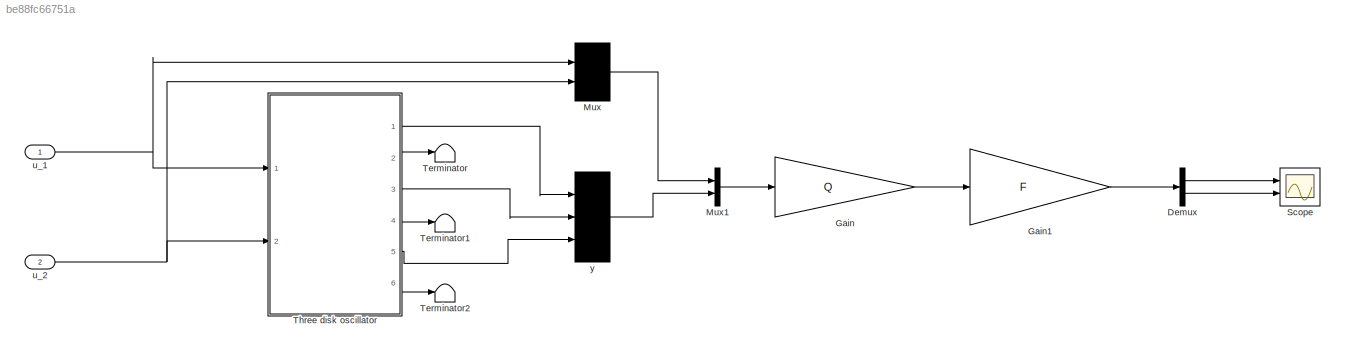
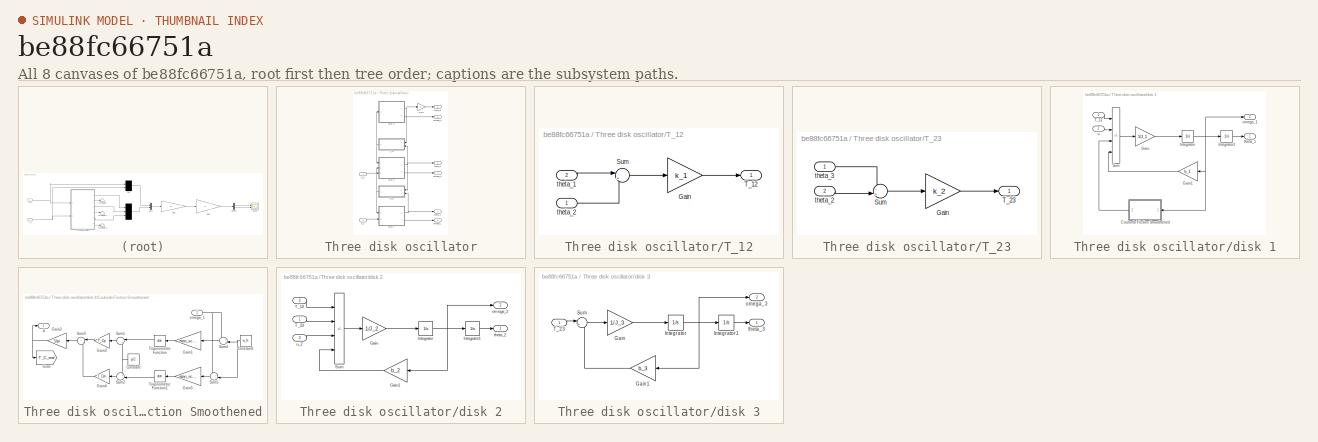
[diagram: thumbnail index - all 8 canvases of the model, root first then tree order]
MODEL slx_be88fc66751a
KIND model
CONFIG AbsTol = auto
CONFIG EnableMultiTasking = off
CONFIG FixedStep = auto
CONFIG MaxStep = auto
CONFIG MinStep = auto
CONFIG RelTol = 1e-3
CONFIG SampleTimeConstraint = Unconstrained
CONFIG SolverName = VariableStepAuto
CONFIG StartTime = 0.0
CONFIG StopTime = 10.0
BLOCK [Demux] Demux
  Outputs = 2
  Ports = [1, 2]
BLOCK [Gain] Gain
  Gain = Q
  Multiplication = Matrix(K*u) (u vector)
BLOCK [Gain] Gain1
  Gain = F
  Multiplication = Matrix(K*u) (u vector)
BLOCK [Mux] Mux
  DisplayOption = bar
  Inputs = 2
  Ports = [2, 1]
BLOCK [Mux] Mux1
  DisplayOption = bar
  Inputs = 2
  Ports = [2, 1]
BLOCK [Scope] Scope
  Floating = off
  NumInputPorts = 2
  Ports = [2]
  ScopeSpecificationString = Simulink.scopes.TimeScopeBlockCfg('CurrentConfiguration', extmgr.ConfigurationSet(extmgr.Configuration('Core','General UI',true),extmgr.Configuration('Core','Source UI',true),extmgr.Configuration('Sources','WiredSimulink',true),extmgr.Configuration('Visuals','Time Domain',true),extmgr.Configuration('Tools','Plot Navigation',true),extmgr.Configuration('Tools','Measurements',true,'Version','2021a'))...<+19ch>
BLOCK [Terminator] Terminator
BLOCK [Terminator] Terminator1
BLOCK [Terminator] Terminator2
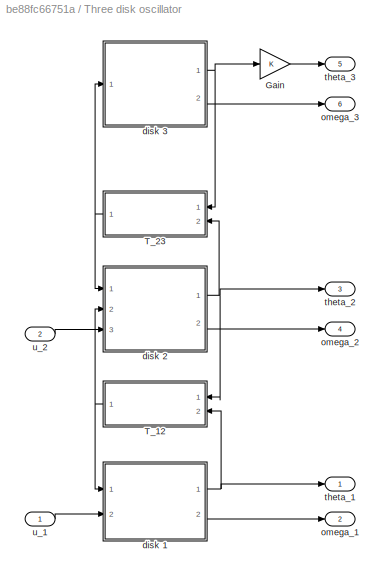
BLOCK [SubSystem] Three disk oscillator
  Ports = [2, 6]
  RequestExecContextInheritance = off
BLOCK [Gain] Three disk oscillator/Gain
BLOCK [SubSystem] Three disk oscillator/T_12
  Ports = [2, 1]
  RequestExecContextInheritance = off
BLOCK [Gain] Three disk oscillator/T_12/Gain
  Gain = k_1
BLOCK [Sum] Three disk oscillator/T_12/Sum
  Inputs = |+-
  Ports = [2, 1]
BLOCK [Outport] Three disk oscillator/T_12/T_12
  VectorParamsAs1DForOutWhenUnconnected = off
BLOCK [Inport] Three disk oscillator/T_12/theta_1
  Port = 2
BLOCK [Inport] Three disk oscillator/T_12/theta_2
BLOCK [SubSystem] Three disk oscillator/T_23
  Ports = [2, 1]
  RequestExecContextInheritance = off
BLOCK [Gain] Three disk oscillator/T_23/Gain
  Gain = k_2
BLOCK [Sum] Three disk oscillator/T_23/Sum
  Inputs = -+|
  Ports = [2, 1]
BLOCK [Outport] Three disk oscillator/T_23/T_23
  VectorParamsAs1DForOutWhenUnconnected = off
BLOCK [Inport] Three disk oscillator/T_23/theta_2
  Port = 2
BLOCK [Inport] Three disk oscillator/T_23/theta_3
BLOCK [SubSystem] Three disk oscillator/disk 1
  Ports = [2, 2]
  RequestExecContextInheritance = off
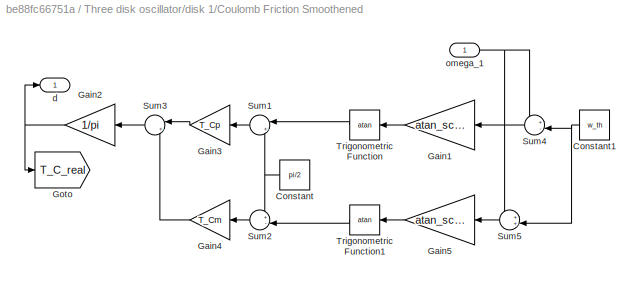
BLOCK [SubSystem] Three disk oscillator/disk 1/Coulomb Friction Smoothened
  Ports = [1, 1]
  RequestExecContextInheritance = off
BLOCK [Constant] Three disk oscillator/disk 1/Coulomb Friction Smoothened/Constant
  Value = pi/2
BLOCK [Constant] Three disk oscillator/disk 1/Coulomb Friction Smoothened/Constant1
  Value = w_th
BLOCK [Gain] Three disk oscillator/disk 1/Coulomb Friction Smoothened/Gain1
  Gain = atan_scale
BLOCK [Gain] Three disk oscillator/disk 1/Coulomb Friction Smoothened/Gain2
  Gain = 1/pi
BLOCK [Gain] Three disk oscillator/disk 1/Coulomb Friction Smoothened/Gain3
  Gain = T_Cp
BLOCK [Gain] Three disk oscillator/disk 1/Coulomb Friction Smoothened/Gain4
  Gain = T_Cm
BLOCK [Gain] Three disk oscillator/disk 1/Coulomb Friction Smoothened/Gain5
  Gain = atan_scale
BLOCK [Goto] Three disk oscillator/disk 1/Coulomb Friction Smoothened/Goto
  GotoTag = T_C_real
  TagVisibility = global
BLOCK [Sum] Three disk oscillator/disk 1/Coulomb Friction Smoothened/Sum1
  Inputs = |++
  Ports = [2, 1]
BLOCK [Sum] Three disk oscillator/disk 1/Coulomb Friction Smoothened/Sum2
  Inputs = +-|
  Ports = [2, 1]
BLOCK [Sum] Three disk oscillator/disk 1/Coulomb Friction Smoothened/Sum3
  Inputs = |+-
  Ports = [2, 1]
BLOCK [Sum] Three disk oscillator/disk 1/Coulomb Friction Smoothened/Sum4
  Inputs = +-|
  Ports = [2, 1]
BLOCK [Sum] Three disk oscillator/disk 1/Coulomb Friction Smoothened/Sum5
  Inputs = ++|
  Ports = [2, 1]
BLOCK [Trigonometry] Three disk oscillator/disk 1/Coulomb Friction Smoothened/Trigonometric Function
  Operator = atan
  Ports = [1, 1]
BLOCK [Trigonometry] Three disk oscillator/disk 1/Coulomb Friction Smoothened/Trigonometric Function1
  Operator = atan
  Ports = [1, 1]
BLOCK [Outport] Three disk oscillator/disk 1/Coulomb Friction Smoothened/d
  VectorParamsAs1DForOutWhenUnconnected = off
BLOCK [Inport] Three disk oscillator/disk 1/Coulomb Friction Smoothened/omega_1
BLOCK [Gain] Three disk oscillator/disk 1/Gain
  Gain = 1/J_1
BLOCK [Gain] Three disk oscillator/disk 1/Gain1
  Gain = b_1
BLOCK [Integrator] Three disk oscillator/disk 1/Integrator
  InitialCondition = x_0(2)
  Ports = [1, 1]
BLOCK [Integrator] Three disk oscillator/disk 1/Integrator1
  InitialCondition = x_0(1)
  Ports = [1, 1]
BLOCK [Sum] Three disk oscillator/disk 1/Sum
  IconShape = rectangular
  Inputs = -+--
  Ports = [4, 1]
BLOCK [Inport] Three disk oscillator/disk 1/T_12
BLOCK [Outport] Three disk oscillator/disk 1/omega_1
  Port = 2
  VectorParamsAs1DForOutWhenUnconnected = off
BLOCK [Outport] Three disk oscillator/disk 1/theta_1
  VectorParamsAs1DForOutWhenUnconnected = off
BLOCK [Inport] Three disk oscillator/disk 1/u
  Port = 2
BLOCK [SubSystem] Three disk oscillator/disk 2
  Ports = [3, 2]
  RequestExecContextInheritance = off
BLOCK [Gain] Three disk oscillator/disk 2/Gain
  Gain = 1/J_2
BLOCK [Gain] Three disk oscillator/disk 2/Gain1
  Gain = b_2
BLOCK [Integrator] Three disk oscillator/disk 2/Integrator
  InitialCondition = x_0(4)
  Ports = [1, 1]
BLOCK [Integrator] Three disk oscillator/disk 2/Integrator1
  InitialCondition = x_0(3)
  Ports = [1, 1]
BLOCK [Sum] Three disk oscillator/disk 2/Sum
  IconShape = rectangular
  Inputs = +-+-
  Ports = [4, 1]
BLOCK [Inport] Three disk oscillator/disk 2/T_12
  Port = 2
BLOCK [Inport] Three disk oscillator/disk 2/T_23
BLOCK [Outport] Three disk oscillator/disk 2/omega_2
  Port = 2
  VectorParamsAs1DForOutWhenUnconnected = off
BLOCK [Outport] Three disk oscillator/disk 2/theta_2
  VectorParamsAs1DForOutWhenUnconnected = off
BLOCK [Inport] Three disk oscillator/disk 2/u_2
  Port = 3
BLOCK [SubSystem] Three disk oscillator/disk 3
  Ports = [1, 2]
  RequestExecContextInheritance = off
BLOCK [Gain] Three disk oscillator/disk 3/Gain
  Gain = 1/J_3
BLOCK [Gain] Three disk oscillator/disk 3/Gain1
  Gain = b_3
BLOCK [Integrator] Three disk oscillator/disk 3/Integrator
  InitialCondition = x_0(6)
  Ports = [1, 1]
BLOCK [Integrator] Three disk oscillator/disk 3/Integrator1
  InitialCondition = x_0(5)
  Ports = [1, 1]
BLOCK [Sum] Three disk oscillator/disk 3/Sum
  Inputs = |+-
  Ports = [2, 1]
BLOCK [Inport] Three disk oscillator/disk 3/T_23
BLOCK [Outport] Three disk oscillator/disk 3/omega_3
  Port = 2
  VectorParamsAs1DForOutWhenUnconnected = off
BLOCK [Outport] Three disk oscillator/disk 3/theta_3
  VectorParamsAs1DForOutWhenUnconnected = off
BLOCK [Outport] Three disk oscillator/omega_1
  Port = 2
  VectorParamsAs1DForOutWhenUnconnected = off
BLOCK [Outport] Three disk oscillator/omega_2
  Port = 4
  VectorParamsAs1DForOutWhenUnconnected = off
BLOCK [Outport] Three disk oscillator/omega_3
  Port = 6
  VectorParamsAs1DForOutWhenUnconnected = off
BLOCK [Outport] Three disk oscillator/theta_1
  VectorParamsAs1DForOutWhenUnconnected = off
BLOCK [Outport] Three disk oscillator/theta_2
  Port = 3
  VectorParamsAs1DForOutWhenUnconnected = off
BLOCK [Outport] Three disk oscillator/theta_3
  Port = 5
  VectorParamsAs1DForOutWhenUnconnected = off
BLOCK [Inport] Three disk oscillator/u_1
BLOCK [Inport] Three disk oscillator/u_2
  Port = 2
BLOCK [Inport] u_1
BLOCK [Inport] u_2
  Port = 2
BLOCK [Mux] y
  DisplayOption = bar
  Inputs = 3
  Ports = [3, 1]
LINE Demux:1 -> Scope:1
LINE Demux:2 -> Scope:2
LINE Gain1:1 -> Demux:1
LINE Gain:1 -> Gain1:1
LINE Mux1:1 -> Gain:1
LINE Mux:1 -> Mux1:1
LINE Three disk oscillator/Gain:1 -> Three disk oscillator/theta_3:1
LINE Three disk oscillator/T_12/Gain:1 -> Three disk oscillator/T_12/T_12:1
LINE Three disk oscillator/T_12/Sum:1 -> Three disk oscillator/T_12/Gain:1
LINE Three disk oscillator/T_12/theta_1:1 -> Three disk oscillator/T_12/Sum:1
LINE Three disk oscillator/T_12/theta_2:1 -> Three disk oscillator/T_12/Sum:2
NET Three disk oscillator/T_12:1 -> Three disk oscillator/disk 1:1, Three disk oscillator/disk 2:2
LINE Three disk oscillator/T_23/Gain:1 -> Three disk oscillator/T_23/T_23:1
LINE Three disk oscillator/T_23/Sum:1 -> Three disk oscillator/T_23/Gain:1
LINE Three disk oscillator/T_23/theta_2:1 -> Three disk oscillator/T_23/Sum:2
LINE Three disk oscillator/T_23/theta_3:1 -> Three disk oscillator/T_23/Sum:1
NET Three disk oscillator/T_23:1 -> Three disk oscillator/disk 2:1, Three disk oscillator/disk 3:1
NET Three disk oscillator/disk 1/Coulomb Friction Smoothened/Constant1:1 -> Three disk oscillator/disk 1/Coulomb Friction Smoothened/Sum4:2, Three disk oscillator/disk 1/Coulomb Friction Smoothened/Sum5:2
NET Three disk oscillator/disk 1/Coulomb Friction Smoothened/Constant:1 -> Three disk oscillator/disk 1/Coulomb Friction Smoothened/Sum1:2, Three disk oscillator/disk 1/Coulomb Friction Smoothened/Sum2:1
LINE Three disk oscillator/disk 1/Coulomb Friction Smoothened/Gain1:1 -> Three disk oscillator/disk 1/Coulomb Friction Smoothened/Trigonometric Function:1
NET Three disk oscillator/disk 1/Coulomb Friction Smoothened/Gain2:1 -> Three disk oscillator/disk 1/Coulomb Friction Smoothened/Goto:1, Three disk oscillator/disk 1/Coulomb Friction Smoothened/d:1
LINE Three disk oscillator/disk 1/Coulomb Friction Smoothened/Gain3:1 -> Three disk oscillator/disk 1/Coulomb Friction Smoothened/Sum3:1
LINE Three disk oscillator/disk 1/Coulomb Friction Smoothened/Gain4:1 -> Three disk oscillator/disk 1/Coulomb Friction Smoothened/Sum3:2
LINE Three disk oscillator/disk 1/Coulomb Friction Smoothened/Gain5:1 -> Three disk oscillator/disk 1/Coulomb Friction Smoothened/Trigonometric Function1:1
LINE Three disk oscillator/disk 1/Coulomb Friction Smoothened/Sum1:1 -> Three disk oscillator/disk 1/Coulomb Friction Smoothened/Gain3:1
LINE Three disk oscillator/disk 1/Coulomb Friction Smoothened/Sum2:1 -> Three disk oscillator/disk 1/Coulomb Friction Smoothened/Gain4:1
LINE Three disk oscillator/disk 1/Coulomb Friction Smoothened/Sum3:1 -> Three disk oscillator/disk 1/Coulomb Friction Smoothened/Gain2:1
LINE Three disk oscillator/disk 1/Coulomb Friction Smoothened/Sum4:1 -> Three disk oscillator/disk 1/Coulomb Friction Smoothened/Gain1:1
LINE Three disk oscillator/disk 1/Coulomb Friction Smoothened/Sum5:1 -> Three disk oscillator/disk 1/Coulomb Friction Smoothened/Gain5:1
LINE Three disk oscillator/disk 1/Coulomb Friction Smoothened/Trigonometric Function1:1 -> Three disk oscillator/disk 1/Coulomb Friction Smoothened/Sum2:2
LINE Three disk oscillator/disk 1/Coulomb Friction Smoothened/Trigonometric Function:1 -> Three disk oscillator/disk 1/Coulomb Friction Smoothened/Sum1:1
NET Three disk oscillator/disk 1/Coulomb Friction Smoothened/omega_1:1 -> Three disk oscillator/disk 1/Coulomb Friction Smoothened/Sum4:1, Three disk oscillator/disk 1/Coulomb Friction Smoothened/Sum5:1
LINE Three disk oscillator/disk 1/Coulomb Friction Smoothened:1 -> Three disk oscillator/disk 1/Sum:3
LINE Three disk oscillator/disk 1/Gain1:1 -> Three disk oscillator/disk 1/Sum:4
LINE Three disk oscillator/disk 1/Gain:1 -> Three disk oscillator/disk 1/Integrator:1
LINE Three disk oscillator/disk 1/Integrator1:1 -> Three disk oscillator/disk 1/theta_1:1
NET Three disk oscillator/disk 1/Integrator:1 -> Three disk oscillator/disk 1/Coulomb Friction Smoothened:1, Three disk oscillator/disk 1/Gain1:1, Three disk oscillator/disk 1/Integrator1:1, Three disk oscillator/disk 1/omega_1:1
LINE Three disk oscillator/disk 1/Sum:1 -> Three disk oscillator/disk 1/Gain:1
LINE Three disk oscillator/disk 1/T_12:1 -> Three disk oscillator/disk 1/Sum:1
LINE Three disk oscillator/disk 1/u:1 -> Three disk oscillator/disk 1/Sum:2
NET Three disk oscillator/disk 1:1 -> Three disk oscillator/T_12:2, Three disk oscillator/theta_1:1
LINE Three disk oscillator/disk 1:2 -> Three disk oscillator/omega_1:1
LINE Three disk oscillator/disk 2/Gain1:1 -> Three disk oscillator/disk 2/Sum:4
LINE Three disk oscillator/disk 2/Gain:1 -> Three disk oscillator/disk 2/Integrator:1
LINE Three disk oscillator/disk 2/Integrator1:1 -> Three disk oscillator/disk 2/theta_2:1
NET Three disk oscillator/disk 2/Integrator:1 -> Three disk oscillator/disk 2/Gain1:1, Three disk oscillator/disk 2/Integrator1:1, Three disk oscillator/disk 2/omega_2:1
LINE Three disk oscillator/disk 2/Sum:1 -> Three disk oscillator/disk 2/Gain:1
LINE Three disk oscillator/disk 2/T_12:1 -> Three disk oscillator/disk 2/Sum:1
LINE Three disk oscillator/disk 2/T_23:1 -> Three disk oscillator/disk 2/Sum:2
LINE Three disk oscillator/disk 2/u_2:1 -> Three disk oscillator/disk 2/Sum:3
NET Three disk oscillator/disk 2:1 -> Three disk oscillator/T_12:1, Three disk oscillator/T_23:2, Three disk oscillator/theta_2:1
LINE Three disk oscillator/disk 2:2 -> Three disk oscillator/omega_2:1
LINE Three disk oscillator/disk 3/Gain1:1 -> Three disk oscillator/disk 3/Sum:2
LINE Three disk oscillator/disk 3/Gain:1 -> Three disk oscillator/disk 3/Integrator:1
LINE Three disk oscillator/disk 3/Integrator1:1 -> Three disk oscillator/disk 3/theta_3:1
NET Three disk oscillator/disk 3/Integrator:1 -> Three disk oscillator/disk 3/Gain1:1, Three disk oscillator/disk 3/Integrator1:1, Three disk oscillator/disk 3/omega_3:1
LINE Three disk oscillator/disk 3/Sum:1 -> Three disk oscillator/disk 3/Gain:1
LINE Three disk oscillator/disk 3/T_23:1 -> Three disk oscillator/disk 3/Sum:1
NET Three disk oscillator/disk 3:1 -> Three disk oscillator/Gain:1, Three disk oscillator/T_23:1
LINE Three disk oscillator/disk 3:2 -> Three disk oscillator/omega_3:1
LINE Three disk oscillator/u_1:1 -> Three disk oscillator/disk 1:2
LINE Three disk oscillator/u_2:1 -> Three disk oscillator/disk 2:3
LINE Three disk oscillator:1 -> y:1
LINE Three disk oscillator:2 -> Terminator:1
LINE Three disk oscillator:3 -> y:2
LINE Three disk oscillator:4 -> Terminator1:1
LINE Three disk oscillator:5 -> y:3
LINE Three disk oscillator:6 -> Terminator2:1
NET u_1:1 -> Mux:1, Three disk oscillator:1
NET u_2:1 -> Mux:2, Three disk oscillator:2
LINE y:1 -> Mux1:2
note: NET lines group one-source signal fan-out (src -> all destinations, sorted); 1:1 wires keep LINE
